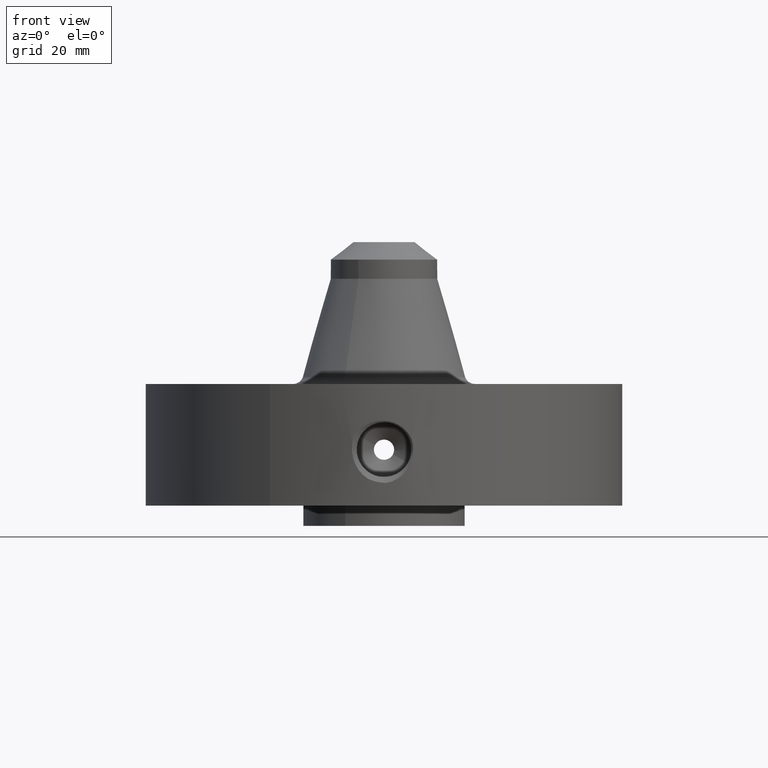
[diagram: clean part render]
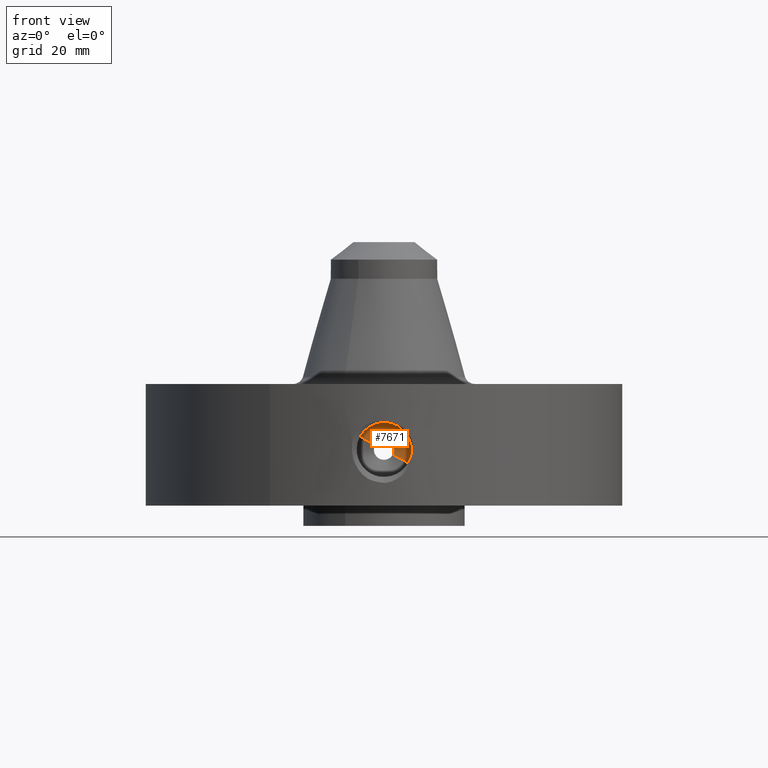
[diagram: same view with one face highlighted and labeled with its STEP entity id]
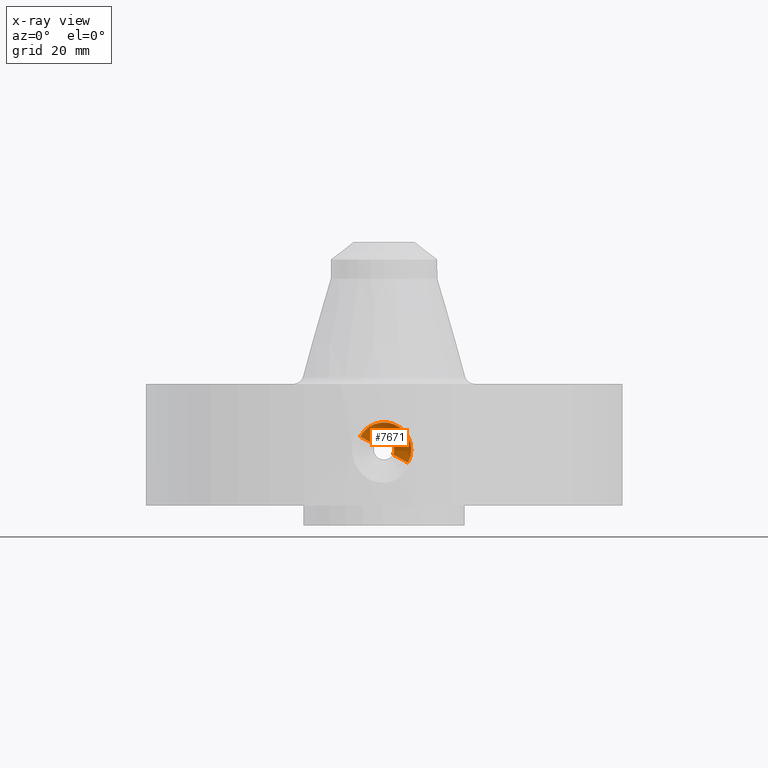
[diagram: x-ray of the same camera — body ghosted, the highlighted face saturated]
A machine part, front view. The second image highlights one B-rep face of the part: STEP entity #7671.
The next image is the same camera in x-ray: the body ghosted, the highlighted face saturated — about 0% of this face is hidden behind the body in this view.
In plain terms, the highlighted conical surface has half-angle 60 deg.
Its self-contained STEP definition (entity closure, byte-faithful):
#4099=AXIS2_PLACEMENT_3D('Circle Axis2P3D',#4097,#4098,$) ;
#7644=AXIS2_PLACEMENT_3D('Cone Axis2P3D',#7641,#7642,#7643) ;
#7655=AXIS2_PLACEMENT_3D('Circle Axis2P3D',#7653,#7654,$) ;
#4094=CARTESIAN_POINT('Vertex',(0.109697820237,-1.94321662098,0.880071807678)) ;
#4097=CARTESIAN_POINT('Axis2P3D Location',(1.02232983984E-015,-1.94321662098,0.940000000004)) ;
#4101=CARTESIAN_POINT('Vertex',(-0.109697820237,-1.94321662098,0.99992819233)) ;
#7641=CARTESIAN_POINT('Axis2P3D Location',(1.02232983984E-015,-1.94321662098,0.940000000004)) ;
#7646=CARTESIAN_POINT('Line Origine',(0.202254259083,-2.00410831049,0.829507994685)) ;
#7650=CARTESIAN_POINT('Vertex',(0.29481069793,-2.06500000001,0.778944181692)) ;
#7653=CARTESIAN_POINT('Axis2P3D Location',(9.99958596042E-016,-2.06500000001,0.940000000004)) ;
#7657=CARTESIAN_POINT('Vertex',(-0.29481069793,-2.06500000001,1.10105581832)) ;
#7660=CARTESIAN_POINT('Line Origine',(-0.202254259083,-2.00410831049,1.05049200532)) ;
#4098=DIRECTION('Axis2P3D Direction',(7.2321661367E-018,0.0393700787402,0.)) ;
#7642=DIRECTION('Axis2P3D Direction',(-7.2321661367E-018,-0.0393700787402,0.)) ;
#7643=DIRECTION('Axis2P3D XDirection',(-0.0345504945626,4.23385151202E-018,0.0188750212049)) ;
#7647=DIRECTION('Vector Direction',(0.0299216060045,-0.0196850393701,-0.0163462478604)) ;
#7654=DIRECTION('Axis2P3D Direction',(-7.2321661367E-018,-0.0393700787402,0.)) ;
#7661=DIRECTION('Vector Direction',(-0.0299216060045,-0.0196850393701,0.0163462478604)) ;
#7648=VECTOR('Line Direction',#7647,0.0393700787402) ;
#7662=VECTOR('Line Direction',#7661,0.0393700787402) ;
#7666=ORIENTED_EDGE('',*,*,#7652,.T.) ;
#7667=ORIENTED_EDGE('',*,*,#7659,.F.) ;
#7668=ORIENTED_EDGE('',*,*,#7664,.F.) ;
#7669=ORIENTED_EDGE('',*,*,#4103,.T.) ;
#7671=ADVANCED_FACE('PartBody',(#7670),#7645,.F.) ;
#4100=CIRCLE('generated circle',#4099,0.125000000001) ;
#7656=CIRCLE('generated circle',#7655,0.335935000001) ;
#7645=CONICAL_SURFACE('Cone',#7644,0.125,1.0471975512) ;
#4103=EDGE_CURVE('',#4102,#4095,#4100,.T.) ;
#7652=EDGE_CURVE('',#4095,#7651,#7649,.T.) ;
#7659=EDGE_CURVE('',#7658,#7651,#7656,.F.) ;
#7664=EDGE_CURVE('',#4102,#7658,#7663,.T.) ;
#7665=EDGE_LOOP('',(#7666,#7667,#7668,#7669)) ;
#7670=FACE_OUTER_BOUND('',#7665,.T.) ;
#7649=LINE('Line',#7646,#7648) ;
#7663=LINE('Line',#7660,#7662) ;
#4095=VERTEX_POINT('',#4094) ;
#4102=VERTEX_POINT('',#4101) ;
#7651=VERTEX_POINT('',#7650) ;
#7658=VERTEX_POINT('',#7657) ;